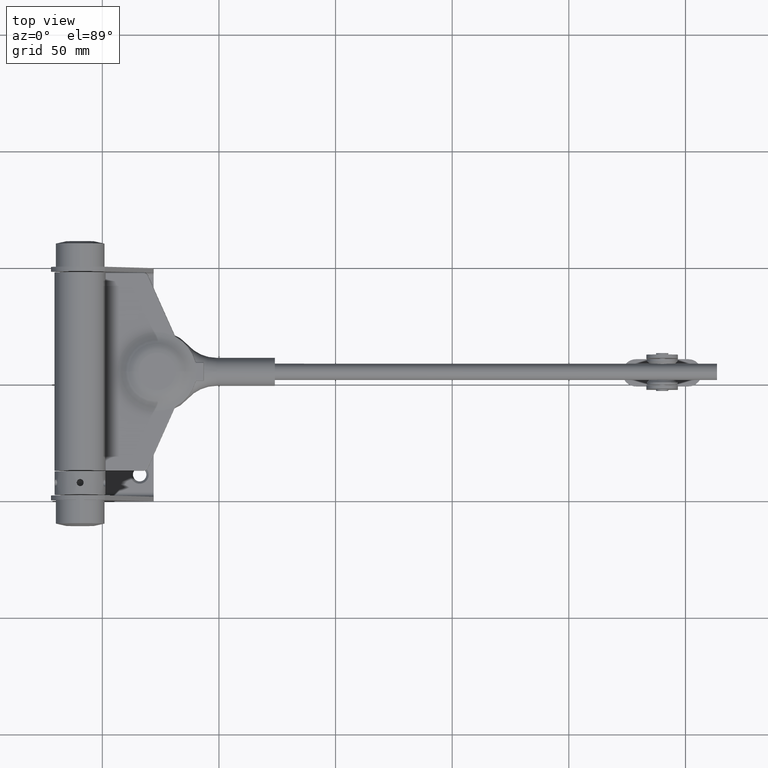
[diagram: clean part render]
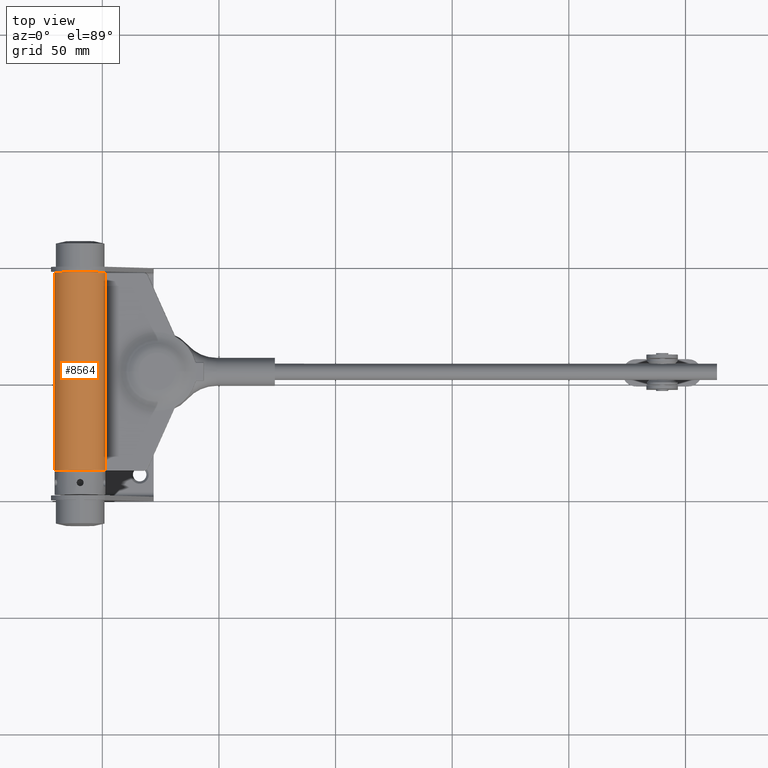
[diagram: same view with one face highlighted and labeled with its STEP entity id]
A machine part, top view. The second image highlights one B-rep face of the part: STEP entity #8564.
In plain terms, the highlighted cylindrical surface (edge-blend (fillet) strip) has radius 11 mm, axis along (0, -1, 0).
Its self-contained STEP definition (entity closure, byte-faithful):
#146 = CARTESIAN_POINT ( 'NONE',  ( -1.000000000000000000, 42.50000000000000000, 10.95445115010332238 ) ) ;
#686 = EDGE_CURVE ( 'NONE', #7704, #22770, #13148, .T. ) ;
#1345 = B_SPLINE_CURVE_WITH_KNOTS ( 'NONE', 3,
 ( #25798, #5552, #21712, #11919, #9983, #26069 ),
 .UNSPECIFIED., .F., .F.,
 ( 4, 2, 4 ),
 ( 0.000000000000000000, 0.0003909633440213430735, 0.0007819266880426861471 ),
 .UNSPECIFIED. ) ;
#1869 = AXIS2_PLACEMENT_3D ( 'NONE', #3686, #7736, #21787 ) ;
#2499 = AXIS2_PLACEMENT_3D ( 'NONE', #17071, #15021, #19097 ) ;
#3403 = ORIENTED_EDGE ( 'NONE', *, *, #23201, .T. ) ;
#3686 = CARTESIAN_POINT ( 'NONE',  ( 0.000000000000000000, -42.50000000000000000, 0.000000000000000000 ) ) ;
#4694 = CARTESIAN_POINT ( 'NONE',  ( -1.000000000000000000, 42.00000000000000000, 10.95445115010332238 ) ) ;
#5490 = CIRCLE ( 'NONE', #1869, 11.00000000000000000 ) ;
#5552 = CARTESIAN_POINT ( 'NONE',  ( -0.6320638355095583583, -42.50000000000000000, 10.98262137533314053 ) ) ;
#5961 = VECTOR ( 'NONE', #26149, 1000.000000000000000 ) ;
#5986 = VERTEX_POINT ( 'NONE', #19425 ) ;
#5999 = ORIENTED_EDGE ( 'NONE', *, *, #7604, .T. ) ;
#6195 = CARTESIAN_POINT ( 'NONE',  ( -0.7613903877043944890, 42.44571469679298303, 10.97400699589121587 ) ) ;
#6202 = LINE ( 'NONE', #16665, #26157 ) ;
#7132 = AXIS2_PLACEMENT_3D ( 'NONE', #22638, #14415, #22554 ) ;
#7604 = EDGE_CURVE ( 'NONE', #14517, #19915, #5490, .T. ) ;
#7704 = VERTEX_POINT ( 'NONE', #22142 ) ;
#7736 = DIRECTION ( 'NONE',  ( 0.000000000000000000, 1.000000000000000000, 0.000000000000000000 ) ) ;
#8141 = CARTESIAN_POINT ( 'NONE',  ( -1.000000000000000000, 42.00000000000000000, 10.95445115010332238 ) ) ;
#8564 = ADVANCED_FACE ( 'NONE', ( #24141 ), #18103, .T. ) ;
#9308 = ORIENTED_EDGE ( 'NONE', *, *, #686, .F. ) ;
#9602 = B_SPLINE_CURVE_WITH_KNOTS ( 'NONE', 3,
 ( #8141, #18292, #20346, #6195, #22355, #10267 ),
 .UNSPECIFIED., .F., .F.,
 ( 4, 2, 4 ),
 ( 0.000000000000000000, 0.0003909636995437005581, 0.0007819273990874011163 ),
 .UNSPECIFIED. ) ;
#9983 = CARTESIAN_POINT ( 'NONE',  ( -1.000000000000000000, -42.13220651640506276, 10.95445115010332060 ) ) ;
#10267 = CARTESIAN_POINT ( 'NONE',  ( -0.5000000000000000000, 42.50000000000000000, 10.98863048791795372 ) ) ;
#10686 = LINE ( 'NONE', #146, #5961 ) ;
#11919 = CARTESIAN_POINT ( 'NONE',  ( -0.9455413487506212356, -42.26169591073746545, 10.95967659329186716 ) ) ;
#13148 = CIRCLE ( 'NONE', #2499, 11.00000000000000000 ) ;
#14060 = VERTEX_POINT ( 'NONE', #4694 ) ;
#14415 = DIRECTION ( 'NONE',  ( -0.000000000000000000, -1.000000000000000000, -0.000000000000000000 ) ) ;
#14517 = VERTEX_POINT ( 'NONE', #25525 ) ;
#14659 = EDGE_CURVE ( 'NONE', #14060, #5986, #10686, .T. ) ;
#15021 = DIRECTION ( 'NONE',  ( 0.000000000000000000, 1.000000000000000000, 0.000000000000000000 ) ) ;
#15271 = ORIENTED_EDGE ( 'NONE', *, *, #22967, .T. ) ;
#15874 = EDGE_CURVE ( 'NONE', #14060, #22770, #9602, .T. ) ;
#16209 = EDGE_LOOP ( 'NONE', ( #9308, #3403, #5999, #15271, #16822, #18112 ) ) ;
#16509 = CARTESIAN_POINT ( 'NONE',  ( -0.5000000000000000000, -42.50000000000000000, 10.98863048791795372 ) ) ;
#16665 = CARTESIAN_POINT ( 'NONE',  ( 0.000000000000000000, 42.50000000000000000, -11.00000000000000000 ) ) ;
#16822 = ORIENTED_EDGE ( 'NONE', *, *, #14659, .F. ) ;
#17071 = CARTESIAN_POINT ( 'NONE',  ( 0.000000000000000000, 42.50000000000000000, 0.000000000000000000 ) ) ;
#18103 = CYLINDRICAL_SURFACE ( 'NONE', #7132, 11.00000000000000000 ) ;
#18112 = ORIENTED_EDGE ( 'NONE', *, *, #15874, .T. ) ;
#18292 = CARTESIAN_POINT ( 'NONE',  ( -0.9999999999999997780, 42.13220192141694298, 10.95445115010332238 ) ) ;
#18538 = CARTESIAN_POINT ( 'NONE',  ( -0.5000000000000000000, 42.50000000000000000, 10.98863048791795372 ) ) ;
#19097 = DIRECTION ( 'NONE',  ( 0.000000000000000000, 0.000000000000000000, 1.000000000000000000 ) ) ;
#19425 = CARTESIAN_POINT ( 'NONE',  ( -1.000000000000000000, -42.00000000000000000, 10.95445115010332238 ) ) ;
#19915 = VERTEX_POINT ( 'NONE', #16509 ) ;
#20346 = CARTESIAN_POINT ( 'NONE',  ( -0.9457098844811064886, 42.26139859333469673, 10.95966138540570256 ) ) ;
#21712 = CARTESIAN_POINT ( 'NONE',  ( -0.7610640920791065245, -42.44591185560618385, 10.97403029517845496 ) ) ;
#21787 = DIRECTION ( 'NONE',  ( 0.000000000000000000, 0.000000000000000000, 1.000000000000000000 ) ) ;
#22142 = CARTESIAN_POINT ( 'NONE',  ( 0.000000000000000000, 42.50000000000000000, -11.00000000000000000 ) ) ;
#22355 = CARTESIAN_POINT ( 'NONE',  ( -0.6320576236962788252, 42.50000000000000711, 10.98262165798043455 ) ) ;
#22554 = DIRECTION ( 'NONE',  ( 0.000000000000000000, 0.000000000000000000, -1.000000000000000000 ) ) ;
#22638 = CARTESIAN_POINT ( 'NONE',  ( 0.000000000000000000, 42.50000000000000000, 0.000000000000000000 ) ) ;
#22678 = DIRECTION ( 'NONE',  ( -0.000000000000000000, -1.000000000000000000, -0.000000000000000000 ) ) ;
#22770 = VERTEX_POINT ( 'NONE', #18538 ) ;
#22967 = EDGE_CURVE ( 'NONE', #19915, #5986, #1345, .T. ) ;
#23201 = EDGE_CURVE ( 'NONE', #7704, #14517, #6202, .T. ) ;
#24141 = FACE_OUTER_BOUND ( 'NONE', #16209, .T. ) ;
#25525 = CARTESIAN_POINT ( 'NONE',  ( 0.000000000000000000, -42.50000000000000000, -11.00000000000000000 ) ) ;
#25798 = CARTESIAN_POINT ( 'NONE',  ( -0.5000000000000000000, -42.50000000000000000, 10.98863048791795372 ) ) ;
#26069 = CARTESIAN_POINT ( 'NONE',  ( -1.000000000000000000, -42.00000000000000000, 10.95445115010332238 ) ) ;
#26149 = DIRECTION ( 'NONE',  ( -0.000000000000000000, -1.000000000000000000, -0.000000000000000000 ) ) ;
#26157 = VECTOR ( 'NONE', #22678, 1000.000000000000000 ) ;